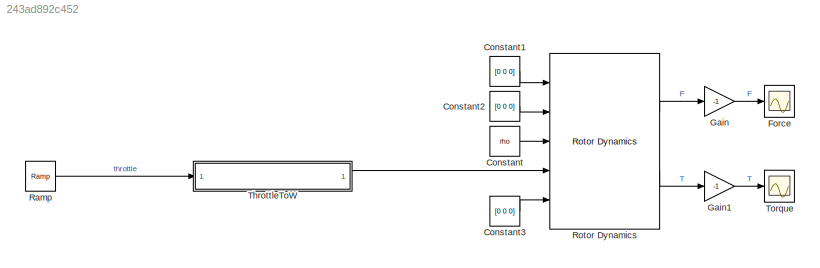
MODEL slx_243ad892c452
KIND model
CONFIG AbsTol = auto
CONFIG EnableMultiTasking = off
CONFIG FixedStep = auto
CONFIG MaxStep = auto
CONFIG MinStep = auto
CONFIG RelTol = 1e-3
CONFIG SampleTimeConstraint = Unconstrained
CONFIG SolverName = VariableStepAuto
CONFIG StartTime = 0.0
CONFIG StopTime = 600
BLOCK [Constant] Constant
  Value = rho
  VectorParams1D = off
BLOCK [Constant] Constant1
  Value = [0 0 0]
BLOCK [Constant] Constant2
  Value = [0 0 0]
BLOCK [Constant] Constant3
  Value = [0 0 0]
BLOCK [Scope] Force
  Floating = off
  NumInputPorts = 1
  Ports = [1]
  ScopeSpecificationString = Simulink.scopes.TimeScopeBlockCfg('CurrentConfiguration', extmgr.ConfigurationSet(extmgr.Configuration('Core','General UI',true),extmgr.Configuration('Core','Source UI',true),extmgr.Configuration('Sources','WiredSimulink',true),extmgr.Configuration('Visuals','Time Domain',true,'SerializedDisplays',{struct('MinYLimReal','-0.94925','MaxYLimReal','8.54321','YLabelReal','','MinYLimMag','0.00000','MaxY...<+1721ch>
BLOCK [Gain] Gain
  Gain = -1
BLOCK [Gain] Gain1
  Gain = -1
BLOCK [Reference] Ramp  REF=simulink/Sources/Ramp
  Ports = [0, 1]
  SourceBlock = simulink/Sources/Ramp
  SourceProductBaseCode = SL
  SourceType = Ramp
BLOCK [Reference] Rotor Dynamics  REF=dynamicsLibrary/Rotor Dynamics
  Ports = [5, 2]
  SourceBlock = dynamicsLibrary/Rotor Dynamics
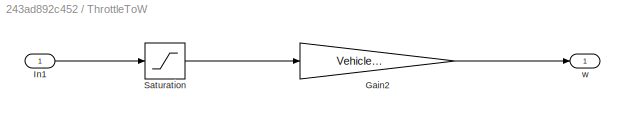
BLOCK [SubSystem] ThrottleToW
  Ports = [1, 1]
  RequestExecContextInheritance = off
BLOCK [Gain] ThrottleToW/Gain2
  Gain = Vehicle.Motor.Throttle2w
BLOCK [Inport] ThrottleToW/In1
BLOCK [Saturate] ThrottleToW/Saturation
  LinearizeAsGain = off
  LowerLimit = Vehicle.Motor.minSignal
  UpperLimit = Vehicle.Motor.maxSignal
BLOCK [Outport] ThrottleToW/w
BLOCK [Scope] Torque
  Floating = off
  NumInputPorts = 1
  Ports = [1]
  ScopeSpecificationString = Simulink.scopes.TimeScopeBlockCfg('CurrentConfiguration', extmgr.ConfigurationSet(extmgr.Configuration('Core','General UI',true),extmgr.Configuration('Core','Source UI',true),extmgr.Configuration('Sources','WiredSimulink',true,'DataLoggingVariableName','ScopeData2'),extmgr.Configuration('Visuals','Time Domain',true,'SerializedDisplays',{struct('MinYLimReal','-0.00846','MaxYLimReal','0.07612','YLab...<+1776ch>
LINE Constant1:1 -> Rotor Dynamics:1
LINE Constant2:1 -> Rotor Dynamics:2
LINE Constant3:1 -> Rotor Dynamics:5
LINE Constant:1 -> Rotor Dynamics:3
LINE Gain1:1 -> Torque:1
LINE Gain:1 -> Force:1
LINE Ramp:1 -> ThrottleToW:1
LINE Rotor Dynamics:1 -> Gain:1
LINE Rotor Dynamics:2 -> Gain1:1
LINE ThrottleToW/Gain2:1 -> ThrottleToW/w:1
LINE ThrottleToW/In1:1 -> ThrottleToW/Saturation:1
LINE ThrottleToW/Saturation:1 -> ThrottleToW/Gain2:1
LINE ThrottleToW:1 -> Rotor Dynamics:4
